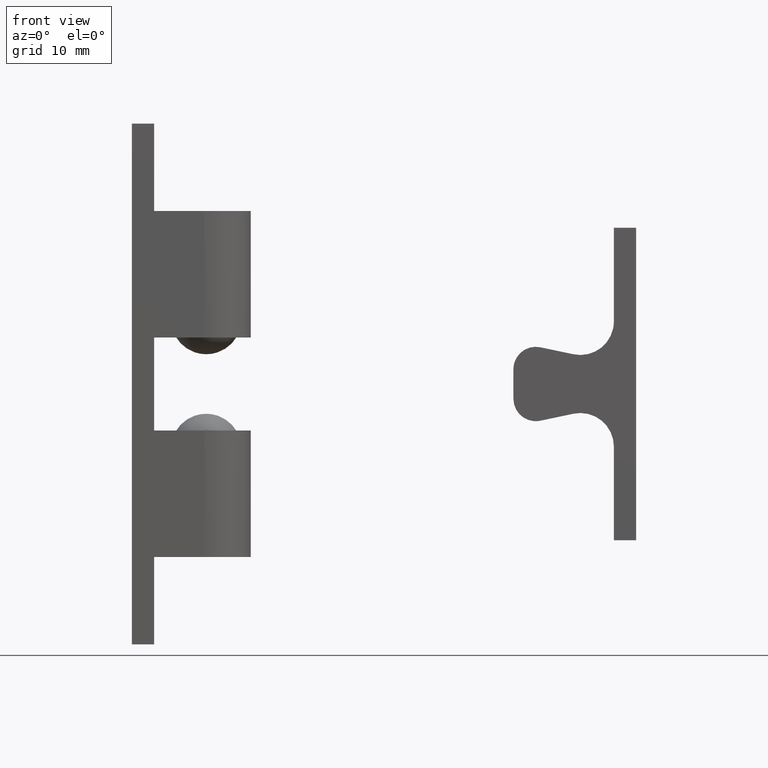
[diagram: clean part render]
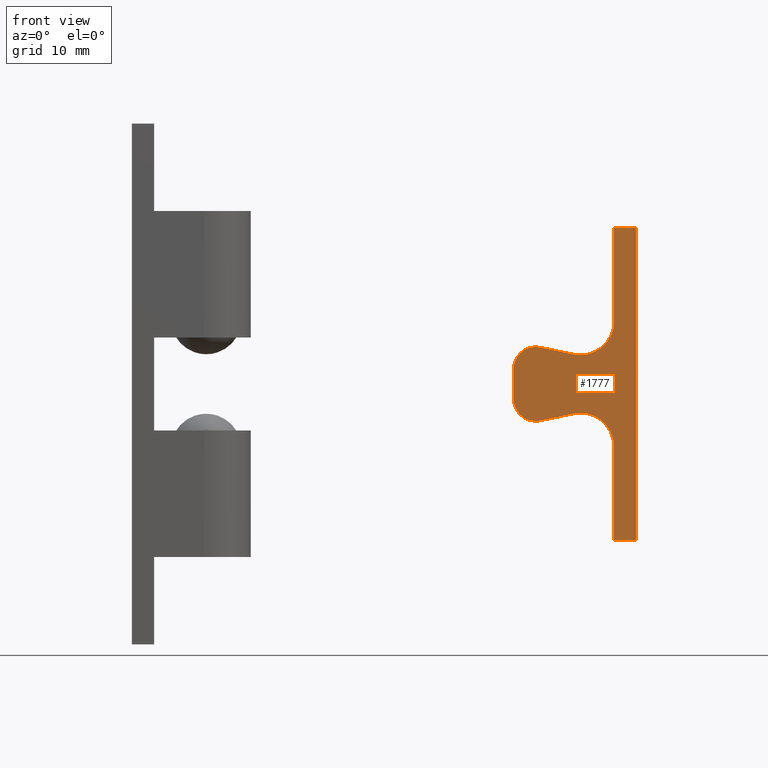
[diagram: same view with one face highlighted and labeled with its STEP entity id]
A machine part, front view. The second image highlights one B-rep face of the part: STEP entity #1777.
In plain terms, the highlighted face is a freeform B-spline surface patch.
Its self-contained STEP definition (entity closure, byte-faithful):
#1646=CARTESIAN_POINT('',(50.466134724906070,-6.500000000000000,23.097796106391069));
#1647=CARTESIAN_POINT('',(68.614488997723598,-6.500000000000000,23.097796106391069));
#1648=CARTESIAN_POINT('',(50.466134724906070,-6.500000000000000,-23.097896106391079));
#1649=CARTESIAN_POINT('',(68.614488997723598,-6.500000000000000,-23.097896106391079));
#1650=B_SPLINE_SURFACE_WITH_KNOTS('',1,1,((#1646,#1648),(#1647,#1649)),.UNSPECIFIED.,.F.,.F.,.U.,(2,2),(2,2),(0.0,18.148354272817532),(0.0,46.195692212782141),.UNSPECIFIED.);
#1651=CARTESIAN_POINT('',(54.938705783282600,-6.500000000000000,-4.929092738337640));
#1652=VERTEX_POINT('',#1651);
#1653=CARTESIAN_POINT('',(59.361311049946799,-6.500000000000000,-3.996800000000000));
#1654=VERTEX_POINT('',#1653);
#1655=CARTESIAN_POINT('',(54.938705783282600,-6.500000000000000,-4.929092738337640));
#1656=CARTESIAN_POINT('',(59.361311049946799,-6.500000000000000,-3.996800000000000));
#1657=QUASI_UNIFORM_CURVE('',1,(#1655,#1656),.UNSPECIFIED.,.F.,.U.);
#1658=EDGE_CURVE('',#1652,#1654,#1657,.T.);
#1659=ORIENTED_EDGE('',*,*,#1658,.T.);
#1660=CARTESIAN_POINT('',(64.790311049946510,-6.500000000000000,-8.400000000000000));
#1661=VERTEX_POINT('',#1660);
#1662=CARTESIAN_POINT('',(64.790311049946510,-6.500000000000000,-8.400000000000000));
#1663=CARTESIAN_POINT('',(64.789991045522967,-6.500000000000000,-6.255822390385037));
#1664=CARTESIAN_POINT('',(63.124685053708873,-6.500000000000000,-4.905173036331577));
#1665=CARTESIAN_POINT('',(61.459379061894772,-6.500000000000000,-3.554523682278117));
#1666=CARTESIAN_POINT('',(59.361311049946799,-6.500000000000000,-3.996799999999991));
#1674=(BOUNDED_CURVE()B_SPLINE_CURVE(2,(#1662,#1663,#1664,#1665,#1666),.UNSPECIFIED.,.F.,.U.)B_SPLINE_CURVE_WITH_KNOTS((3,2,3),(0.0,0.500000000000000,1.0),.UNSPECIFIED.)CURVE()GEOMETRIC_REPRESENTATION_ITEM()RATIONAL_B_SPLINE_CURVE((1.0,0.902782023835910,1.0,0.902782023835910,1.0))REPRESENTATION_ITEM(''));
#1675=EDGE_CURVE('',#1661,#1654,#1674,.T.);
#1676=ORIENTED_EDGE('',*,*,#1675,.F.);
#1677=CARTESIAN_POINT('',(64.790311049946709,-6.500000000000000,-21.0));
#1678=VERTEX_POINT('',#1677);
#1679=CARTESIAN_POINT('',(64.790311049946510,-6.500000000000000,-8.400000000000000));
#1680=CARTESIAN_POINT('',(64.790311049946709,-6.500000000000000,-21.0));
#1681=QUASI_UNIFORM_CURVE('',1,(#1679,#1680),.UNSPECIFIED.,.F.,.U.);
#1682=EDGE_CURVE('',#1661,#1678,#1681,.T.);
#1683=ORIENTED_EDGE('',*,*,#1682,.T.);
#1684=CARTESIAN_POINT('',(67.790311049946610,-6.500000000000000,-21.0));
#1685=VERTEX_POINT('',#1684);
#1686=CARTESIAN_POINT('',(64.790311049946709,-6.500000000000000,-21.0));
#1687=CARTESIAN_POINT('',(67.790311049946610,-6.500000000000000,-21.0));
#1688=QUASI_UNIFORM_CURVE('',1,(#1686,#1687),.UNSPECIFIED.,.F.,.U.);
#1689=EDGE_CURVE('',#1678,#1685,#1688,.T.);
#1690=ORIENTED_EDGE('',*,*,#1689,.T.);
#1691=CARTESIAN_POINT('',(67.790311049946610,-6.500000000000000,20.999900000000000));
#1692=VERTEX_POINT('',#1691);
#1693=CARTESIAN_POINT('',(67.790311049946610,-6.500000000000000,-21.0));
#1694=CARTESIAN_POINT('',(67.790311049946610,-6.500000000000000,20.999900000000000));
#1695=QUASI_UNIFORM_CURVE('',1,(#1693,#1694),.UNSPECIFIED.,.F.,.U.);
#1696=EDGE_CURVE('',#1685,#1692,#1695,.T.);
#1697=ORIENTED_EDGE('',*,*,#1696,.T.);
#1698=CARTESIAN_POINT('',(64.790311049946709,-6.500000000000000,20.999900000000000));
#1699=VERTEX_POINT('',#1698);
#1700=CARTESIAN_POINT('',(67.790311049946610,-6.500000000000000,20.999900000000000));
#1701=CARTESIAN_POINT('',(64.790311049946709,-6.500000000000000,20.999900000000000));
#1702=QUASI_UNIFORM_CURVE('',1,(#1700,#1701),.UNSPECIFIED.,.F.,.U.);
#1703=EDGE_CURVE('',#1692,#1699,#1702,.T.);
#1704=ORIENTED_EDGE('',*,*,#1703,.T.);
#1705=CARTESIAN_POINT('',(64.790311049946709,-6.500000000000000,8.399900000000001));
#1706=VERTEX_POINT('',#1705);
#1707=CARTESIAN_POINT('',(64.790311049946709,-6.500000000000000,20.999900000000000));
#1708=CARTESIAN_POINT('',(64.790311049946709,-6.500000000000000,8.399900000000001));
#1709=QUASI_UNIFORM_CURVE('',1,(#1707,#1708),.UNSPECIFIED.,.F.,.U.);
#1710=EDGE_CURVE('',#1699,#1706,#1709,.T.);
#1711=ORIENTED_EDGE('',*,*,#1710,.T.);
#1712=CARTESIAN_POINT('',(59.338878029489301,-6.500000000000000,4.001630430318795));
#1713=VERTEX_POINT('',#1712);
#1714=CARTESIAN_POINT('',(59.338878029489301,-6.500000000000000,4.001630430318818));
#1715=CARTESIAN_POINT('',(61.441603186784363,-6.500000000000000,3.546769236410277));
#1716=CARTESIAN_POINT('',(63.115957118365493,-6.500000000000000,4.897654392389232));
#1717=CARTESIAN_POINT('',(64.790311049946610,-6.500000000000000,6.248539548368188));
#1718=CARTESIAN_POINT('',(64.790311049946610,-6.500000000000000,8.399900000000001));
#1726=(BOUNDED_CURVE()B_SPLINE_CURVE(2,(#1714,#1715,#1716,#1717,#1718),.UNSPECIFIED.,.F.,.U.)B_SPLINE_CURVE_WITH_KNOTS((3,2,3),(0.0,0.500000000000000,1.0),.UNSPECIFIED.)CURVE()GEOMETRIC_REPRESENTATION_ITEM()RATIONAL_B_SPLINE_CURVE((1.0,0.902197691345286,1.0,0.902197691345286,1.0))REPRESENTATION_ITEM(''));
#1727=EDGE_CURVE('',#1713,#1706,#1726,.T.);
#1728=ORIENTED_EDGE('',*,*,#1727,.F.);
#1729=CARTESIAN_POINT('',(54.908311108268698,-6.500000000000000,4.935899987701701));
#1730=VERTEX_POINT('',#1729);
#1731=CARTESIAN_POINT('',(59.338878029489301,-6.500000000000000,4.001630430318795));
#1732=CARTESIAN_POINT('',(54.908311108268698,-6.500000000000000,4.935899987701701));
#1733=QUASI_UNIFORM_CURVE('',1,(#1731,#1732),.UNSPECIFIED.,.F.,.U.);
#1734=EDGE_CURVE('',#1713,#1730,#1733,.T.);
#1735=ORIENTED_EDGE('',*,*,#1734,.T.);
#1736=CARTESIAN_POINT('',(51.290311049946702,-6.500000000000000,1.999900000000000));
#1737=VERTEX_POINT('',#1736);
#1738=CARTESIAN_POINT('',(54.908311108268698,-6.500000000000000,4.935899987701693));
#1739=CARTESIAN_POINT('',(53.509605669594599,-6.500000000000000,5.230843741620612));
#1740=CARTESIAN_POINT('',(52.399634177030002,-6.500000000000000,4.330104041237539));
#1741=CARTESIAN_POINT('',(51.289662684465398,-6.500000000000000,3.429364340854467));
#1742=CARTESIAN_POINT('',(51.290311049946681,-6.500000000000000,1.999900000000003));
#1750=(BOUNDED_CURVE()B_SPLINE_CURVE(2,(#1738,#1739,#1740,#1741,#1742),.UNSPECIFIED.,.F.,.U.)B_SPLINE_CURVE_WITH_KNOTS((3,2,3),(0.0,0.500000000000000,1.0),.UNSPECIFIED.)CURVE()GEOMETRIC_REPRESENTATION_ITEM()RATIONAL_B_SPLINE_CURVE((1.0,0.902710255952973,1.0,0.902710255952973,1.0))REPRESENTATION_ITEM(''));
#1751=EDGE_CURVE('',#1730,#1737,#1750,.T.);
#1752=ORIENTED_EDGE('',*,*,#1751,.T.);
#1753=CARTESIAN_POINT('',(51.290311049946602,-6.500000000000000,-2.0));
#1754=VERTEX_POINT('',#1753);
#1755=CARTESIAN_POINT('',(51.290311049946702,-6.500000000000000,1.999900000000000));
#1756=CARTESIAN_POINT('',(51.290311049946602,-6.500000000000000,-2.0));
#1757=QUASI_UNIFORM_CURVE('',1,(#1755,#1756),.UNSPECIFIED.,.F.,.U.);
#1758=EDGE_CURVE('',#1737,#1754,#1757,.T.);
#1759=ORIENTED_EDGE('',*,*,#1758,.T.);
#1760=CARTESIAN_POINT('',(51.290311049946702,-6.500000000000000,-2.0));
#1761=CARTESIAN_POINT('',(51.290311049946695,-6.500000000000000,-3.438677927375774));
#1762=CARTESIAN_POINT('',(52.412171571634147,-6.500000000000000,-4.339357198036215));
#1763=CARTESIAN_POINT('',(53.534032093321599,-6.500000000000000,-5.240036468696657));
#1764=CARTESIAN_POINT('',(54.938705783282600,-6.500000000000000,-4.929092738337635));
#1772=(BOUNDED_CURVE()B_SPLINE_CURVE(2,(#1760,#1761,#1762,#1763,#1764),.UNSPECIFIED.,.F.,.U.)B_SPLINE_CURVE_WITH_KNOTS((3,2,3),(0.0,0.500000000000000,1.0),.UNSPECIFIED.)CURVE()GEOMETRIC_REPRESENTATION_ITEM()RATIONAL_B_SPLINE_CURVE((1.0,0.901678017024606,1.0,0.901678017024606,1.0))REPRESENTATION_ITEM(''));
#1773=EDGE_CURVE('',#1754,#1652,#1772,.T.);
#1774=ORIENTED_EDGE('',*,*,#1773,.T.);
#1775=EDGE_LOOP('',(#1659,#1676,#1683,#1690,#1697,#1704,#1711,#1728,#1735,#1752,#1759,#1774));
#1776=FACE_OUTER_BOUND('',#1775,.T.);
#1777=ADVANCED_FACE('',(#1776),#1650,.F.);